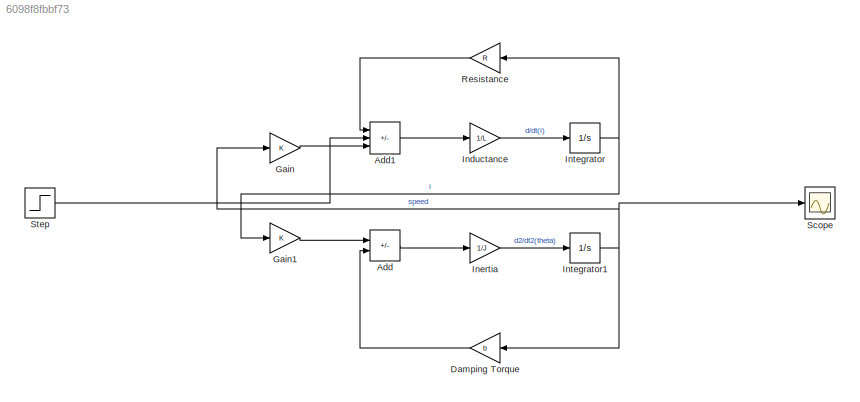
MODEL slx_6098f8fbbf73
KIND model
CONFIG AbsTol = auto
CONFIG EnableMultiTasking = off
CONFIG FixedStep = auto
CONFIG MaxStep = auto
CONFIG MinStep = auto
CONFIG RelTol = 1e-3
CONFIG SampleTimeConstraint = Unconstrained
CONFIG SolverName = VariableStepAuto
CONFIG StartTime = 0.0
CONFIG StopTime = 10.0
BLOCK [Sum] Add
  IconShape = rectangular
  Inputs = +-
  Ports = [2, 1]
BLOCK [Sum] Add1
  IconShape = rectangular
  Inputs = -+-
  Ports = [3, 1]
BLOCK [Gain] Damping Torque
  Gain = b
  NameLocation = top
BLOCK [Gain] Gain
BLOCK [Gain] Gain1
BLOCK [Gain] Inductance
  Gain = 1/L
BLOCK [Gain] Inertia
  Gain = 1/J
BLOCK [Integrator] Integrator
  Ports = [1, 1]
BLOCK [Integrator] Integrator1
  Ports = [1, 1]
BLOCK [Gain] Resistance
  Gain = R
  NameLocation = top
BLOCK [Scope] Scope
  Floating = off
  NumInputPorts = 1
  Ports = [1]
  ScopeSpecificationString = Simulink.scopes.TimeScopeBlockCfg('CurrentConfiguration', extmgr.ConfigurationSet(extmgr.Configuration('Core','General UI',true),extmgr.Configuration('Core','Source UI',true),extmgr.Configuration('Sources','WiredSimulink',true),extmgr.Configuration('Visuals','Time Domain',true,'SerializedDisplays',{struct('MinYLimReal','-0.13938','MaxYLimReal','1.25444','YLabelReal','','MinYLimMag','0.00000','MaxY...<+1352ch>
BLOCK [Step] Step
  SampleTime = 0
LINE Add1:1 -> Inductance:1
LINE Add:1 -> Inertia:1
LINE Damping Torque:1 -> Add:2
LINE Gain1:1 -> Add:1
LINE Gain:1 -> Add1:3
LINE Inductance:1 -> Integrator:1
LINE Inertia:1 -> Integrator1:1
NET Integrator1:1 -> Damping Torque:1, Gain:1, Scope:1
NET Integrator:1 -> Gain1:1, Resistance:1
LINE Resistance:1 -> Add1:1
LINE Step:1 -> Add1:2
note: NET lines group one-source signal fan-out (src -> all destinations, sorted); 1:1 wires keep LINE
